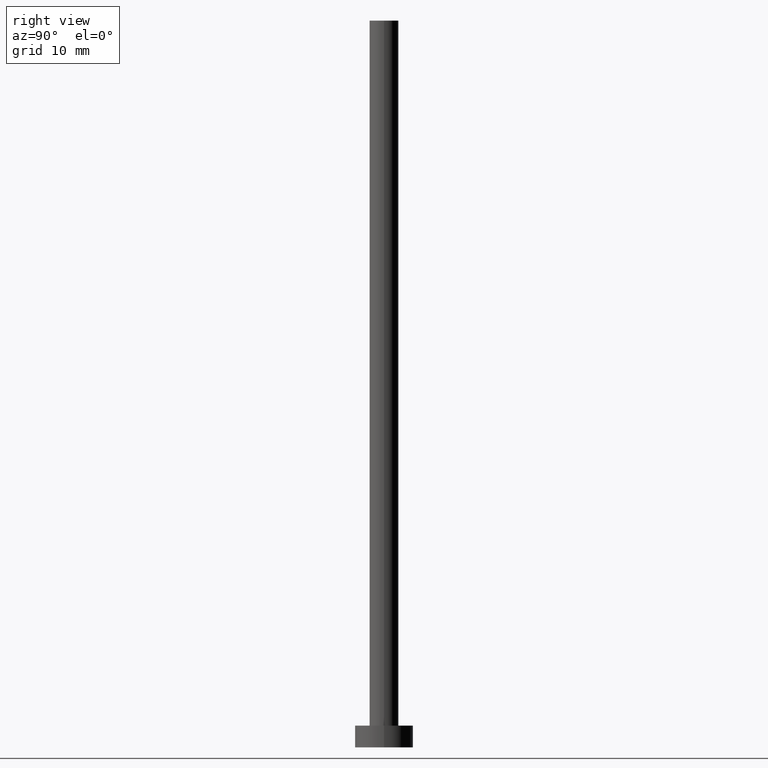
[diagram: clean part render]
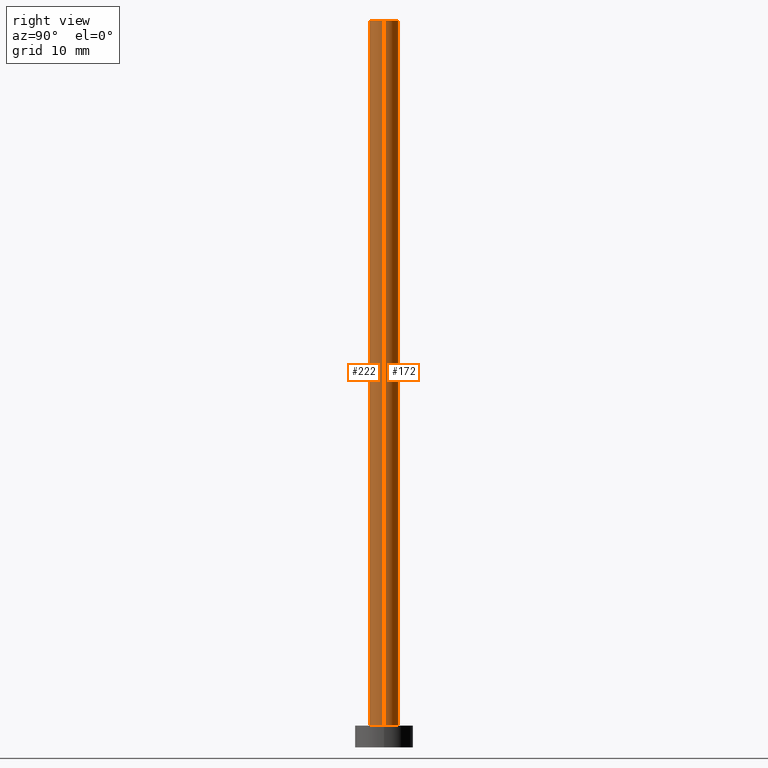
[diagram: same view with one multi-face feature highlighted, each face labeled with its STEP entity id]
A machine part, right view. The highlighted faces form ONE feature: a constant-radius fillet chain: 2 tangent blend faces with common blend radius 2 mm. The faces share edges in the B-rep.
Their STEP definitions:
[1] entity #222 (Cylinder):
#3 = DIRECTION ( 'NONE',  ( 1.000000000000000000, 0.000000000000000000, 0.000000000000000000 ) ) ;
#7 = DIRECTION ( 'NONE',  ( 0.000000000000000000, 0.000000000000000000, 1.000000000000000000 ) ) ;
#11 = DIRECTION ( 'NONE',  ( 1.000000000000000000, 0.000000000000000000, 0.000000000000000000 ) ) ;
#17 = DIRECTION ( 'NONE',  ( -0.000000000000000000, -0.000000000000000000, -1.000000000000000000 ) ) ;
#20 = VERTEX_POINT ( 'NONE', #133 ) ;
#22 = ORIENTED_EDGE ( 'NONE', *, *, #206, .T. ) ;
#33 = LINE ( 'NONE', #35, #48 ) ;
#35 = CARTESIAN_POINT ( 'NONE',  ( 2.000000000000000000, 2.449293598294705921E-16, 100.0000000000000000 ) ) ;
#40 = CARTESIAN_POINT ( 'NONE',  ( 2.000000000000000000, 2.449293598294705921E-16, 3.000000000000000000 ) ) ;
#48 = VECTOR ( 'NONE', #211, 1000.000000000000000 ) ;
#51 = ORIENTED_EDGE ( 'NONE', *, *, #148, .F. ) ;
#60 = LINE ( 'NONE', #155, #253 ) ;
#78 = CARTESIAN_POINT ( 'NONE',  ( 0.000000000000000000, 0.000000000000000000, 100.0000000000000000 ) ) ;
#80 = CARTESIAN_POINT ( 'NONE',  ( 2.000000000000000000, 2.449293598294705921E-16, 100.0000000000000000 ) ) ;
#83 = DIRECTION ( 'NONE',  ( -1.000000000000000000, 0.000000000000000000, 0.000000000000000000 ) ) ;
#86 = DIRECTION ( 'NONE',  ( -0.000000000000000000, -0.000000000000000000, -1.000000000000000000 ) ) ;
#99 = CARTESIAN_POINT ( 'NONE',  ( -2.000000000000000000, 0.000000000000000000, 100.0000000000000000 ) ) ;
#121 = CARTESIAN_POINT ( 'NONE',  ( 0.000000000000000000, 0.000000000000000000, 100.0000000000000000 ) ) ;
#133 = CARTESIAN_POINT ( 'NONE',  ( -2.000000000000000000, 0.000000000000000000, 3.000000000000000000 ) ) ;
#138 = CYLINDRICAL_SURFACE ( 'NONE', #234, 2.000000000000000000 ) ;
#141 = ORIENTED_EDGE ( 'NONE', *, *, #167, .T. ) ;
#148 = EDGE_CURVE ( 'NONE', #232, #225, #33, .T. ) ;
#151 = AXIS2_PLACEMENT_3D ( 'NONE', #199, #179, #3 ) ;
#155 = CARTESIAN_POINT ( 'NONE',  ( -2.000000000000000000, 0.000000000000000000, 100.0000000000000000 ) ) ;
#160 = VERTEX_POINT ( 'NONE', #99 ) ;
#167 = EDGE_CURVE ( 'NONE', #160, #20, #60, .T. ) ;
#179 = DIRECTION ( 'NONE',  ( 0.000000000000000000, 0.000000000000000000, 1.000000000000000000 ) ) ;
#181 = EDGE_LOOP ( 'NONE', ( #51, #249, #141, #22 ) ) ;
#190 = AXIS2_PLACEMENT_3D ( 'NONE', #78, #7, #11 ) ;
#199 = CARTESIAN_POINT ( 'NONE',  ( 0.000000000000000000, 0.000000000000000000, 3.000000000000000000 ) ) ;
#206 = EDGE_CURVE ( 'NONE', #20, #225, #229, .T. ) ;
#211 = DIRECTION ( 'NONE',  ( -0.000000000000000000, -0.000000000000000000, -1.000000000000000000 ) ) ;
#213 = EDGE_CURVE ( 'NONE', #160, #232, #223, .T. ) ;
#222 = ADVANCED_FACE ( 'NONE', ( #239 ), #138, .T. ) ;
#223 = CIRCLE ( 'NONE', #190, 2.000000000000000000 ) ;
#225 = VERTEX_POINT ( 'NONE', #40 ) ;
#229 = CIRCLE ( 'NONE', #151, 2.000000000000000000 ) ;
#232 = VERTEX_POINT ( 'NONE', #80 ) ;
#234 = AXIS2_PLACEMENT_3D ( 'NONE', #121, #17, #83 ) ;
#239 = FACE_OUTER_BOUND ( 'NONE', #181, .T. ) ;
#249 = ORIENTED_EDGE ( 'NONE', *, *, #213, .F. ) ;
#253 = VECTOR ( 'NONE', #86, 1000.000000000000000 ) ;
[2] entity #172 (Cylinder):
#2 = DIRECTION ( 'NONE',  ( 0.000000000000000000, 0.000000000000000000, 1.000000000000000000 ) ) ;
#20 = VERTEX_POINT ( 'NONE', #133 ) ;
#33 = LINE ( 'NONE', #35, #48 ) ;
#35 = CARTESIAN_POINT ( 'NONE',  ( 2.000000000000000000, 2.449293598294705921E-16, 100.0000000000000000 ) ) ;
#36 = CIRCLE ( 'NONE', #153, 2.000000000000000000 ) ;
#38 = CARTESIAN_POINT ( 'NONE',  ( 0.000000000000000000, 0.000000000000000000, 100.0000000000000000 ) ) ;
#39 = EDGE_LOOP ( 'NONE', ( #126, #45, #227, #144 ) ) ;
#40 = CARTESIAN_POINT ( 'NONE',  ( 2.000000000000000000, 2.449293598294705921E-16, 3.000000000000000000 ) ) ;
#44 = DIRECTION ( 'NONE',  ( -1.000000000000000000, 0.000000000000000000, 0.000000000000000000 ) ) ;
#45 = ORIENTED_EDGE ( 'NONE', *, *, #148, .T. ) ;
#48 = VECTOR ( 'NONE', #211, 1000.000000000000000 ) ;
#56 = CIRCLE ( 'NONE', #236, 2.000000000000000000 ) ;
#60 = LINE ( 'NONE', #155, #253 ) ;
#61 = EDGE_CURVE ( 'NONE', #232, #160, #56, .T. ) ;
#80 = CARTESIAN_POINT ( 'NONE',  ( 2.000000000000000000, 2.449293598294705921E-16, 100.0000000000000000 ) ) ;
#86 = DIRECTION ( 'NONE',  ( -0.000000000000000000, -0.000000000000000000, -1.000000000000000000 ) ) ;
#99 = CARTESIAN_POINT ( 'NONE',  ( -2.000000000000000000, 0.000000000000000000, 100.0000000000000000 ) ) ;
#104 = EDGE_CURVE ( 'NONE', #225, #20, #36, .T. ) ;
#109 = CARTESIAN_POINT ( 'NONE',  ( 0.000000000000000000, 0.000000000000000000, 100.0000000000000000 ) ) ;
#113 = DIRECTION ( 'NONE',  ( 1.000000000000000000, 0.000000000000000000, 0.000000000000000000 ) ) ;
#125 = CYLINDRICAL_SURFACE ( 'NONE', #168, 2.000000000000000000 ) ;
#126 = ORIENTED_EDGE ( 'NONE', *, *, #61, .F. ) ;
#133 = CARTESIAN_POINT ( 'NONE',  ( -2.000000000000000000, 0.000000000000000000, 3.000000000000000000 ) ) ;
#136 = CARTESIAN_POINT ( 'NONE',  ( 0.000000000000000000, 0.000000000000000000, 3.000000000000000000 ) ) ;
#144 = ORIENTED_EDGE ( 'NONE', *, *, #167, .F. ) ;
#148 = EDGE_CURVE ( 'NONE', #232, #225, #33, .T. ) ;
#153 = AXIS2_PLACEMENT_3D ( 'NONE', #136, #212, #169 ) ;
#155 = CARTESIAN_POINT ( 'NONE',  ( -2.000000000000000000, 0.000000000000000000, 100.0000000000000000 ) ) ;
#160 = VERTEX_POINT ( 'NONE', #99 ) ;
#167 = EDGE_CURVE ( 'NONE', #160, #20, #60, .T. ) ;
#168 = AXIS2_PLACEMENT_3D ( 'NONE', #38, #175, #44 ) ;
#169 = DIRECTION ( 'NONE',  ( 1.000000000000000000, 0.000000000000000000, 0.000000000000000000 ) ) ;
#172 = ADVANCED_FACE ( 'NONE', ( #244 ), #125, .T. ) ;
#175 = DIRECTION ( 'NONE',  ( -0.000000000000000000, -0.000000000000000000, -1.000000000000000000 ) ) ;
#211 = DIRECTION ( 'NONE',  ( -0.000000000000000000, -0.000000000000000000, -1.000000000000000000 ) ) ;
#212 = DIRECTION ( 'NONE',  ( 0.000000000000000000, 0.000000000000000000, 1.000000000000000000 ) ) ;
#225 = VERTEX_POINT ( 'NONE', #40 ) ;
#227 = ORIENTED_EDGE ( 'NONE', *, *, #104, .T. ) ;
#232 = VERTEX_POINT ( 'NONE', #80 ) ;
#236 = AXIS2_PLACEMENT_3D ( 'NONE', #109, #2, #113 ) ;
#244 = FACE_OUTER_BOUND ( 'NONE', #39, .T. ) ;
#253 = VECTOR ( 'NONE', #86, 1000.000000000000000 ) ;